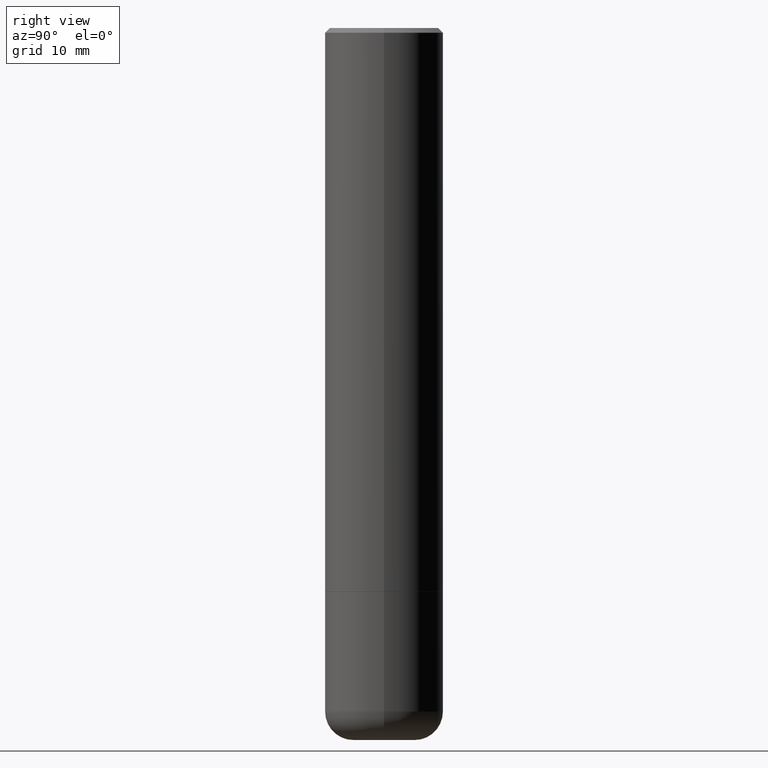
[diagram: clean part render]
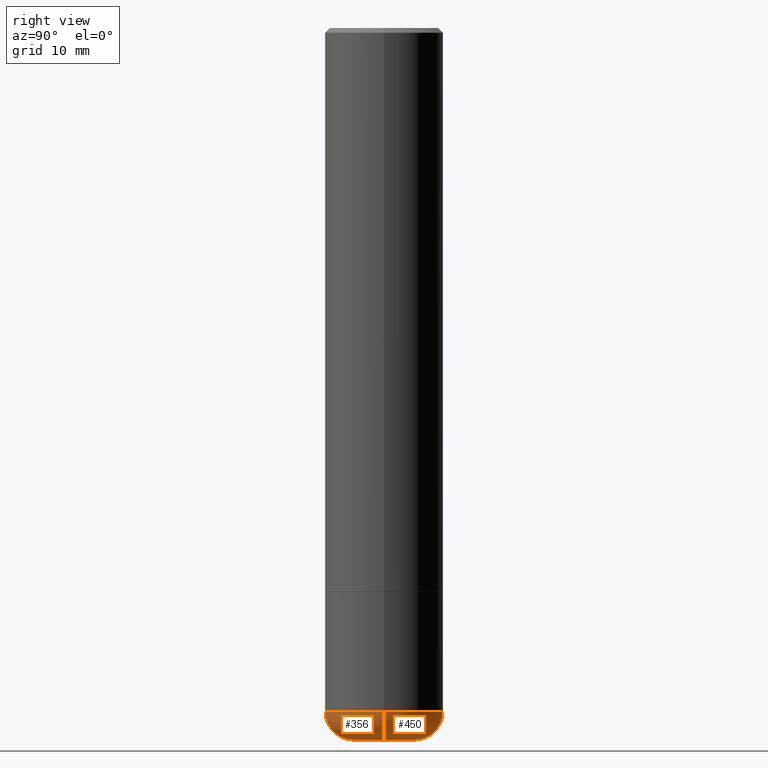
[diagram: same view with one multi-face feature highlighted, each face labeled with its STEP entity id]
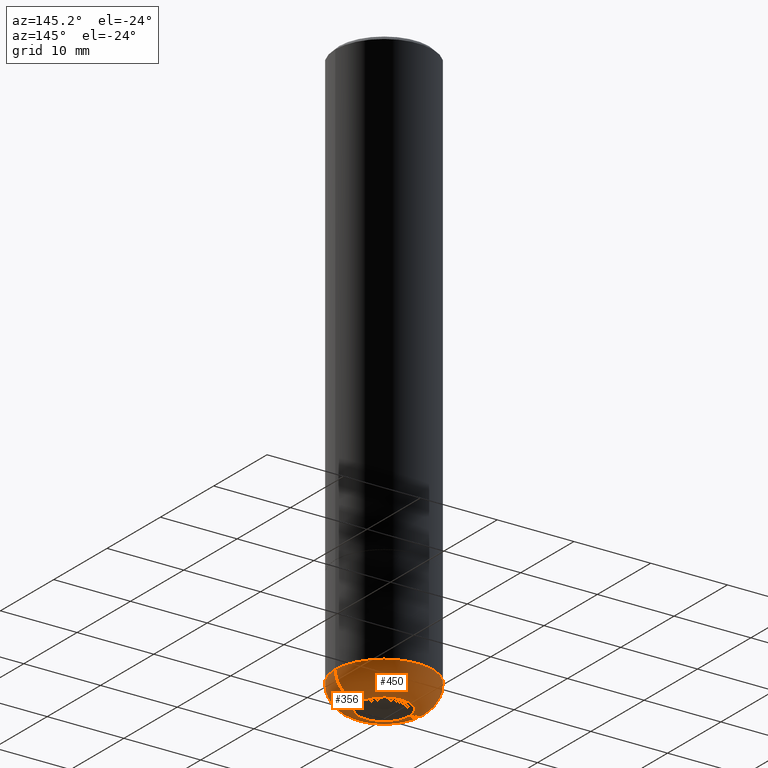
[diagram: same view with one multi-face feature highlighted, each face labeled with its STEP entity id]
A machine part, right view. The highlighted faces form ONE feature: a constant-radius fillet chain: 2 tangent blend faces with common blend radius 3.048 mm. The faces share edges in the B-rep.
A second angle (auxiliary view) of the same feature is appended — it is thin or edge-on in the first view.
Their STEP definitions:
[1] entity #356 (Torus):
#7 = DIRECTION ( 'NONE',  ( -1.000000000000000000, 7.105427357601001859E-15, 0.000000000000000000 ) ) ;
#11 = DIRECTION ( 'NONE',  ( 1.000000000000000000, -6.982962677686270655E-15, 4.883557194083114583E-29 ) ) ;
#12 = EDGE_CURVE ( 'NONE', #194, #444, #91, .T. ) ;
#29 = DIRECTION ( 'NONE',  ( -6.982962677686266711E-15, -1.000000000000000000, 3.491481338843145583E-15 ) ) ;
#40 = DIRECTION ( 'NONE',  ( 1.000000000000000000, -6.982962677686269077E-15, 0.000000000000000000 ) ) ;
#42 = FACE_OUTER_BOUND ( 'NONE', #218, .T. ) ;
#47 = DIRECTION ( 'NONE',  ( 1.000000000000000000, -6.982962677686259611E-15, 0.000000000000000000 ) ) ;
#80 = CIRCLE ( 'NONE', #352, 0.1200000000000000927 ) ;
#88 = EDGE_CURVE ( 'NONE', #198, #194, #464, .T. ) ;
#91 = CIRCLE ( 'NONE', #231, 0.2500000000000000555 ) ;
#104 = DIRECTION ( 'NONE',  ( 7.105427357601001859E-15, 1.000000000000000000, -3.491481338843145583E-15 ) ) ;
#109 = CARTESIAN_POINT ( 'NONE',  ( 0.1289528157401959862, -1.137491671602577837E-14, -3.000000000000000444 ) ) ;
#129 = CARTESIAN_POINT ( 'NONE',  ( -0.1300000000000001710, -9.131776652769433533E-15, -2.880004569232299527 ) ) ;
#137 = DIRECTION ( 'NONE',  ( 1.000000000000000000, -6.982962677686262766E-15, 0.000000000000000000 ) ) ;
#145 = AXIS2_PLACEMENT_3D ( 'NONE', #340, #309, #11 ) ;
#146 = DIRECTION ( 'NONE',  ( -2.445468806185136597E-29, 3.491481338843145583E-15, 1.000000000000000000 ) ) ;
#150 = EDGE_CURVE ( 'NONE', #264, #444, #80, .T. ) ;
#188 = CARTESIAN_POINT ( 'NONE',  ( 7.042961335728249090E-29, -1.005548220925756617E-14, -2.880004569232299527 ) ) ;
#194 = VERTEX_POINT ( 'NONE', #214 ) ;
#198 = VERTEX_POINT ( 'NONE', #279 ) ;
#214 = CARTESIAN_POINT ( 'NONE',  ( -0.2500000000000000555, -7.397518355104768470E-15, -2.880004569232299527 ) ) ;
#218 = EDGE_LOOP ( 'NONE', ( #403, #288, #229, #268 ) ) ;
#229 = ORIENTED_EDGE ( 'NONE', *, *, #150, .T. ) ;
#231 = AXIS2_PLACEMENT_3D ( 'NONE', #188, #146, #40 ) ;
#252 = TOROIDAL_SURFACE ( 'NONE', #145, 0.1300000000000001710, 0.1200000000000000927 ) ;
#258 = DIRECTION ( 'NONE',  ( -2.445468806185136597E-29, 3.491481338843145583E-15, 1.000000000000000000 ) ) ;
#261 = CIRCLE ( 'NONE', #361, 0.1289528157401959862 ) ;
#264 = VERTEX_POINT ( 'NONE', #109 ) ;
#268 = ORIENTED_EDGE ( 'NONE', *, *, #12, .F. ) ;
#279 = CARTESIAN_POINT ( 'NONE',  ( -0.1289528157401959862, -8.918652260793341109E-15, -3.000000000000000444 ) ) ;
#288 = ORIENTED_EDGE ( 'NONE', *, *, #357, .T. ) ;
#309 = DIRECTION ( 'NONE',  ( -2.445468806185136597E-29, 3.491481338843145583E-15, 1.000000000000000000 ) ) ;
#335 = CARTESIAN_POINT ( 'NONE',  ( 7.336406418555409790E-29, -1.047444401652943635E-14, -3.000000000000000444 ) ) ;
#340 = CARTESIAN_POINT ( 'NONE',  ( 7.042961335728249090E-29, -1.005548220925756617E-14, -2.880004569232299527 ) ) ;
#352 = AXIS2_PLACEMENT_3D ( 'NONE', #363, #29, #137 ) ;
#356 = ADVANCED_FACE ( 'NONE', ( #42 ), #252, .T. ) ;
#357 = EDGE_CURVE ( 'NONE', #198, #264, #261, .T. ) ;
#361 = AXIS2_PLACEMENT_3D ( 'NONE', #335, #258, #47 ) ;
#363 = CARTESIAN_POINT ( 'NONE',  ( 0.1300000000000001710, -1.096326735735678116E-14, -2.880004569232299527 ) ) ;
#403 = ORIENTED_EDGE ( 'NONE', *, *, #88, .F. ) ;
#404 = AXIS2_PLACEMENT_3D ( 'NONE', #129, #104, #7 ) ;
#416 = CARTESIAN_POINT ( 'NONE',  ( 0.2500000000000000555, -1.180122287867913443E-14, -2.880004569232299527 ) ) ;
#444 = VERTEX_POINT ( 'NONE', #416 ) ;
#464 = CIRCLE ( 'NONE', #404, 0.1200000000000000927 ) ;
[2] entity #450 (Torus):
#7 = DIRECTION ( 'NONE',  ( -1.000000000000000000, 7.105427357601001859E-15, 0.000000000000000000 ) ) ;
#29 = DIRECTION ( 'NONE',  ( -6.982962677686266711E-15, -1.000000000000000000, 3.491481338843145583E-15 ) ) ;
#33 = CIRCLE ( 'NONE', #367, 0.2500000000000000555 ) ;
#35 = ORIENTED_EDGE ( 'NONE', *, *, #150, .F. ) ;
#45 = CARTESIAN_POINT ( 'NONE',  ( 7.336406418555409790E-29, -1.047444401652943635E-14, -3.000000000000000444 ) ) ;
#80 = CIRCLE ( 'NONE', #352, 0.1200000000000000927 ) ;
#86 = CARTESIAN_POINT ( 'NONE',  ( 7.042961335728249090E-29, -1.005548220925756617E-14, -2.880004569232299527 ) ) ;
#88 = EDGE_CURVE ( 'NONE', #198, #194, #464, .T. ) ;
#89 = DIRECTION ( 'NONE',  ( -2.445468806185136597E-29, 3.491481338843145583E-15, 1.000000000000000000 ) ) ;
#97 = DIRECTION ( 'NONE',  ( 1.000000000000000000, -6.982962677686269077E-15, 0.000000000000000000 ) ) ;
#104 = DIRECTION ( 'NONE',  ( 7.105427357601001859E-15, 1.000000000000000000, -3.491481338843145583E-15 ) ) ;
#109 = CARTESIAN_POINT ( 'NONE',  ( 0.1289528157401959862, -1.137491671602577837E-14, -3.000000000000000444 ) ) ;
#124 = CIRCLE ( 'NONE', #430, 0.1289528157401959862 ) ;
#129 = CARTESIAN_POINT ( 'NONE',  ( -0.1300000000000001710, -9.131776652769433533E-15, -2.880004569232299527 ) ) ;
#137 = DIRECTION ( 'NONE',  ( 1.000000000000000000, -6.982962677686262766E-15, 0.000000000000000000 ) ) ;
#150 = EDGE_CURVE ( 'NONE', #264, #444, #80, .T. ) ;
#194 = VERTEX_POINT ( 'NONE', #214 ) ;
#197 = DIRECTION ( 'NONE',  ( 1.000000000000000000, -6.982962677686259611E-15, 0.000000000000000000 ) ) ;
#198 = VERTEX_POINT ( 'NONE', #279 ) ;
#208 = AXIS2_PLACEMENT_3D ( 'NONE', #86, #89, #316 ) ;
#214 = CARTESIAN_POINT ( 'NONE',  ( -0.2500000000000000555, -7.397518355104768470E-15, -2.880004569232299527 ) ) ;
#242 = EDGE_CURVE ( 'NONE', #444, #194, #33, .T. ) ;
#264 = VERTEX_POINT ( 'NONE', #109 ) ;
#279 = CARTESIAN_POINT ( 'NONE',  ( -0.1289528157401959862, -8.918652260793341109E-15, -3.000000000000000444 ) ) ;
#283 = ORIENTED_EDGE ( 'NONE', *, *, #398, .T. ) ;
#300 = DIRECTION ( 'NONE',  ( -2.445468806185136597E-29, 3.491481338843145583E-15, 1.000000000000000000 ) ) ;
#310 = TOROIDAL_SURFACE ( 'NONE', #208, 0.1300000000000001710, 0.1200000000000000927 ) ;
#316 = DIRECTION ( 'NONE',  ( 1.000000000000000000, -6.982962677686270655E-15, 4.883557194083114583E-29 ) ) ;
#327 = CARTESIAN_POINT ( 'NONE',  ( 7.042961335728249090E-29, -1.005548220925756617E-14, -2.880004569232299527 ) ) ;
#352 = AXIS2_PLACEMENT_3D ( 'NONE', #363, #29, #137 ) ;
#363 = CARTESIAN_POINT ( 'NONE',  ( 0.1300000000000001710, -1.096326735735678116E-14, -2.880004569232299527 ) ) ;
#367 = AXIS2_PLACEMENT_3D ( 'NONE', #327, #432, #97 ) ;
#376 = ORIENTED_EDGE ( 'NONE', *, *, #242, .F. ) ;
#398 = EDGE_CURVE ( 'NONE', #264, #198, #124, .T. ) ;
#404 = AXIS2_PLACEMENT_3D ( 'NONE', #129, #104, #7 ) ;
#416 = CARTESIAN_POINT ( 'NONE',  ( 0.2500000000000000555, -1.180122287867913443E-14, -2.880004569232299527 ) ) ;
#430 = AXIS2_PLACEMENT_3D ( 'NONE', #45, #300, #197 ) ;
#432 = DIRECTION ( 'NONE',  ( -2.445468806185136597E-29, 3.491481338843145583E-15, 1.000000000000000000 ) ) ;
#440 = ORIENTED_EDGE ( 'NONE', *, *, #88, .T. ) ;
#444 = VERTEX_POINT ( 'NONE', #416 ) ;
#448 = EDGE_LOOP ( 'NONE', ( #283, #440, #376, #35 ) ) ;
#450 = ADVANCED_FACE ( 'NONE', ( #465 ), #310, .T. ) ;
#464 = CIRCLE ( 'NONE', #404, 0.1200000000000000927 ) ;
#465 = FACE_OUTER_BOUND ( 'NONE', #448, .T. ) ;